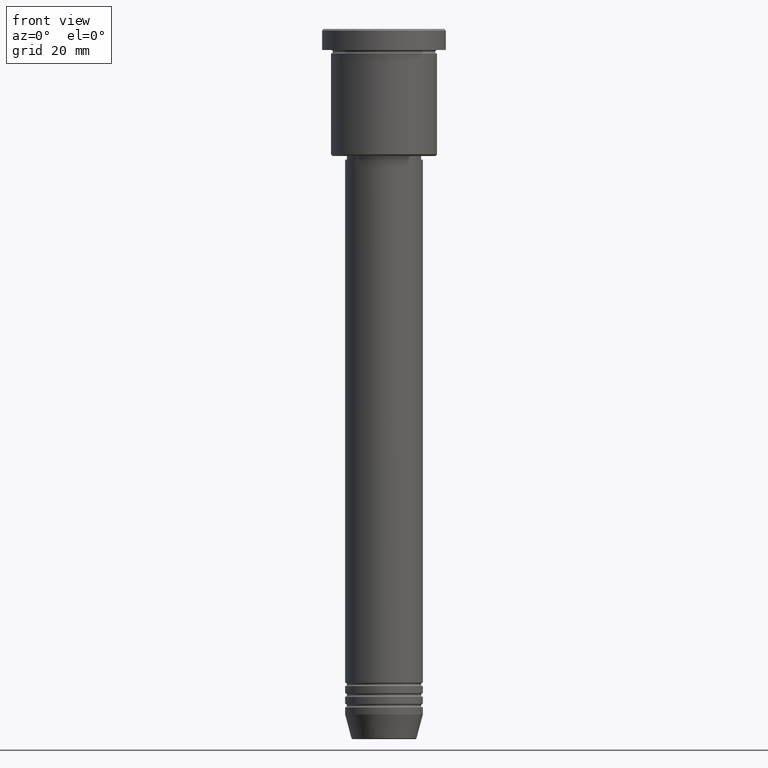
[diagram: clean part render]
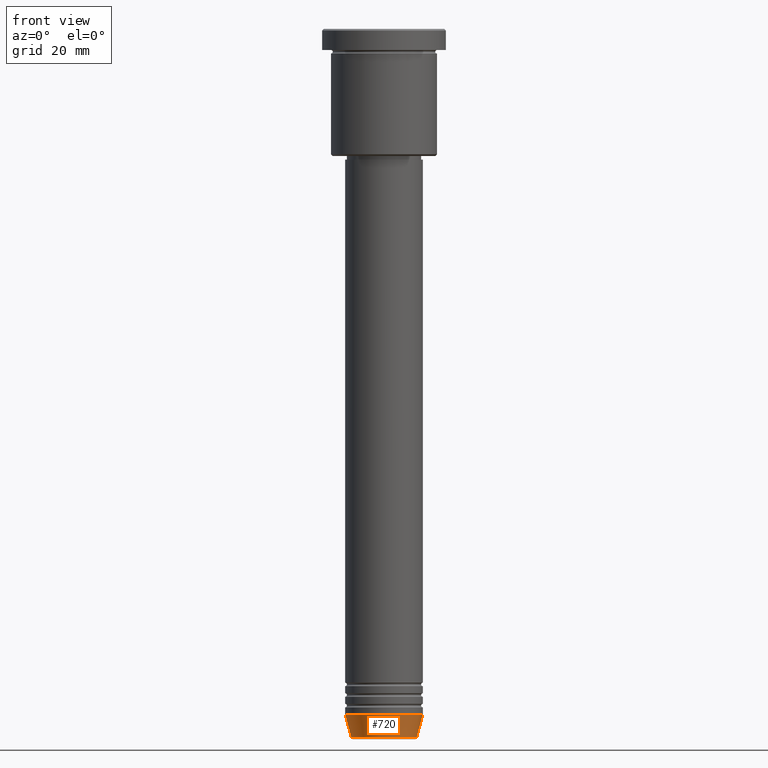
[diagram: same view with one face highlighted and labeled with its STEP entity id]
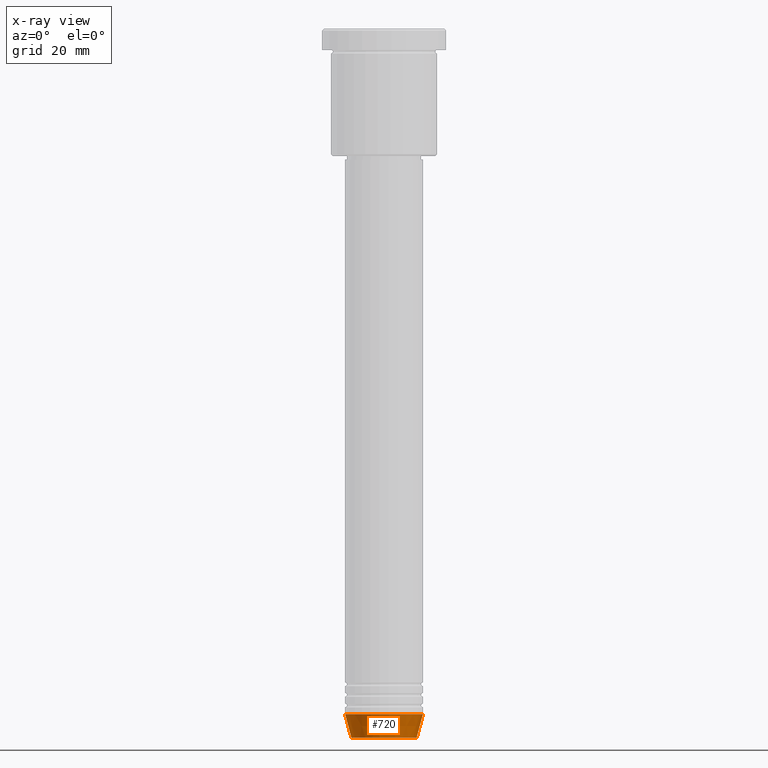
[diagram: x-ray of the same camera — body ghosted, the highlighted face saturated]
A machine part, front view. The second image highlights one B-rep face of the part: STEP entity #720.
The next image is the same camera in x-ray: the body ghosted, the highlighted face saturated — about 0% of this face is hidden behind the body in this view.
In plain terms, the highlighted conical surface has half-angle 15 deg.
Its self-contained STEP definition (entity closure, byte-faithful):
#41 = FACE_OUTER_BOUND ( 'NONE', #380, .T. ) ;
#85 = CIRCLE ( 'NONE', #187, 9.223655072137194821 ) ;
#95 = CARTESIAN_POINT ( 'NONE',  ( 11.00000000000000000, 0.000000000000000000, -194.0000000000000284 ) ) ;
#99 = DIRECTION ( 'NONE',  ( -0.000000000000000000, -0.000000000000000000, 1.000000000000000000 ) ) ;
#134 = CARTESIAN_POINT ( 'NONE',  ( -11.00000000000000000, 1.347111479062088405E-15, -194.0000000000000284 ) ) ;
#143 = DIRECTION ( 'NONE',  ( -0.2588190451025213501, 3.169619151431772337E-17, 0.9659258262890680902 ) ) ;
#187 = AXIS2_PLACEMENT_3D ( 'NONE', #1014, #99, #293 ) ;
#193 = CARTESIAN_POINT ( 'NONE',  ( 11.00000000000000000, 0.000000000000000000, -194.0000000000000284 ) ) ;
#224 = CONICAL_SURFACE ( 'NONE', #832, 11.00000000000000000, 0.2617993877991500740 ) ;
#293 = DIRECTION ( 'NONE',  ( 1.000000000000000000, 0.000000000000000000, 0.000000000000000000 ) ) ;
#296 = VERTEX_POINT ( 'NONE', #770 ) ;
#313 = VERTEX_POINT ( 'NONE', #336 ) ;
#330 = DIRECTION ( 'NONE',  ( -0.000000000000000000, -0.000000000000000000, 1.000000000000000000 ) ) ;
#336 = CARTESIAN_POINT ( 'NONE',  ( -11.00000000000000000, 1.347111479062088405E-15, -194.0000000000000284 ) ) ;
#380 = EDGE_LOOP ( 'NONE', ( #791, #438, #1018, #833 ) ) ;
#396 = EDGE_CURVE ( 'NONE', #296, #948, #814, .T. ) ;
#423 = LINE ( 'NONE', #134, #1118 ) ;
#438 = ORIENTED_EDGE ( 'NONE', *, *, #977, .T. ) ;
#471 = CIRCLE ( 'NONE', #640, 11.00000000000000000 ) ;
#556 = CARTESIAN_POINT ( 'NONE',  ( 0.000000000000000000, 0.000000000000000000, -194.0000000000000284 ) ) ;
#588 = DIRECTION ( 'NONE',  ( 1.000000000000000000, 0.000000000000000000, 0.000000000000000000 ) ) ;
#609 = CARTESIAN_POINT ( 'NONE',  ( -9.223655072137194821, 1.238341722557647596E-15, -200.6294095225512706 ) ) ;
#638 = VECTOR ( 'NONE', #1005, 1000.000000000000000 ) ;
#640 = AXIS2_PLACEMENT_3D ( 'NONE', #556, #944, #830 ) ;
#720 = ADVANCED_FACE ( 'NONE', ( #41 ), #224, .T. ) ;
#747 = EDGE_CURVE ( 'NONE', #865, #313, #423, .T. ) ;
#770 = CARTESIAN_POINT ( 'NONE',  ( 9.223655072137194821, 0.000000000000000000, -200.6294095225512706 ) ) ;
#777 = CARTESIAN_POINT ( 'NONE',  ( 0.000000000000000000, 0.000000000000000000, -194.0000000000000284 ) ) ;
#791 = ORIENTED_EDGE ( 'NONE', *, *, #747, .F. ) ;
#814 = LINE ( 'NONE', #95, #638 ) ;
#830 = DIRECTION ( 'NONE',  ( 1.000000000000000000, 0.000000000000000000, 0.000000000000000000 ) ) ;
#832 = AXIS2_PLACEMENT_3D ( 'NONE', #777, #330, #588 ) ;
#833 = ORIENTED_EDGE ( 'NONE', *, *, #988, .F. ) ;
#865 = VERTEX_POINT ( 'NONE', #609 ) ;
#944 = DIRECTION ( 'NONE',  ( -0.000000000000000000, -0.000000000000000000, 1.000000000000000000 ) ) ;
#948 = VERTEX_POINT ( 'NONE', #193 ) ;
#977 = EDGE_CURVE ( 'NONE', #865, #296, #85, .T. ) ;
#988 = EDGE_CURVE ( 'NONE', #313, #948, #471, .T. ) ;
#1005 = DIRECTION ( 'NONE',  ( 0.2588190451025213501, 0.000000000000000000, 0.9659258262890680902 ) ) ;
#1014 = CARTESIAN_POINT ( 'NONE',  ( 0.000000000000000000, 0.000000000000000000, -200.6294095225512706 ) ) ;
#1018 = ORIENTED_EDGE ( 'NONE', *, *, #396, .T. ) ;
#1118 = VECTOR ( 'NONE', #143, 1000.000000000000000 ) ;